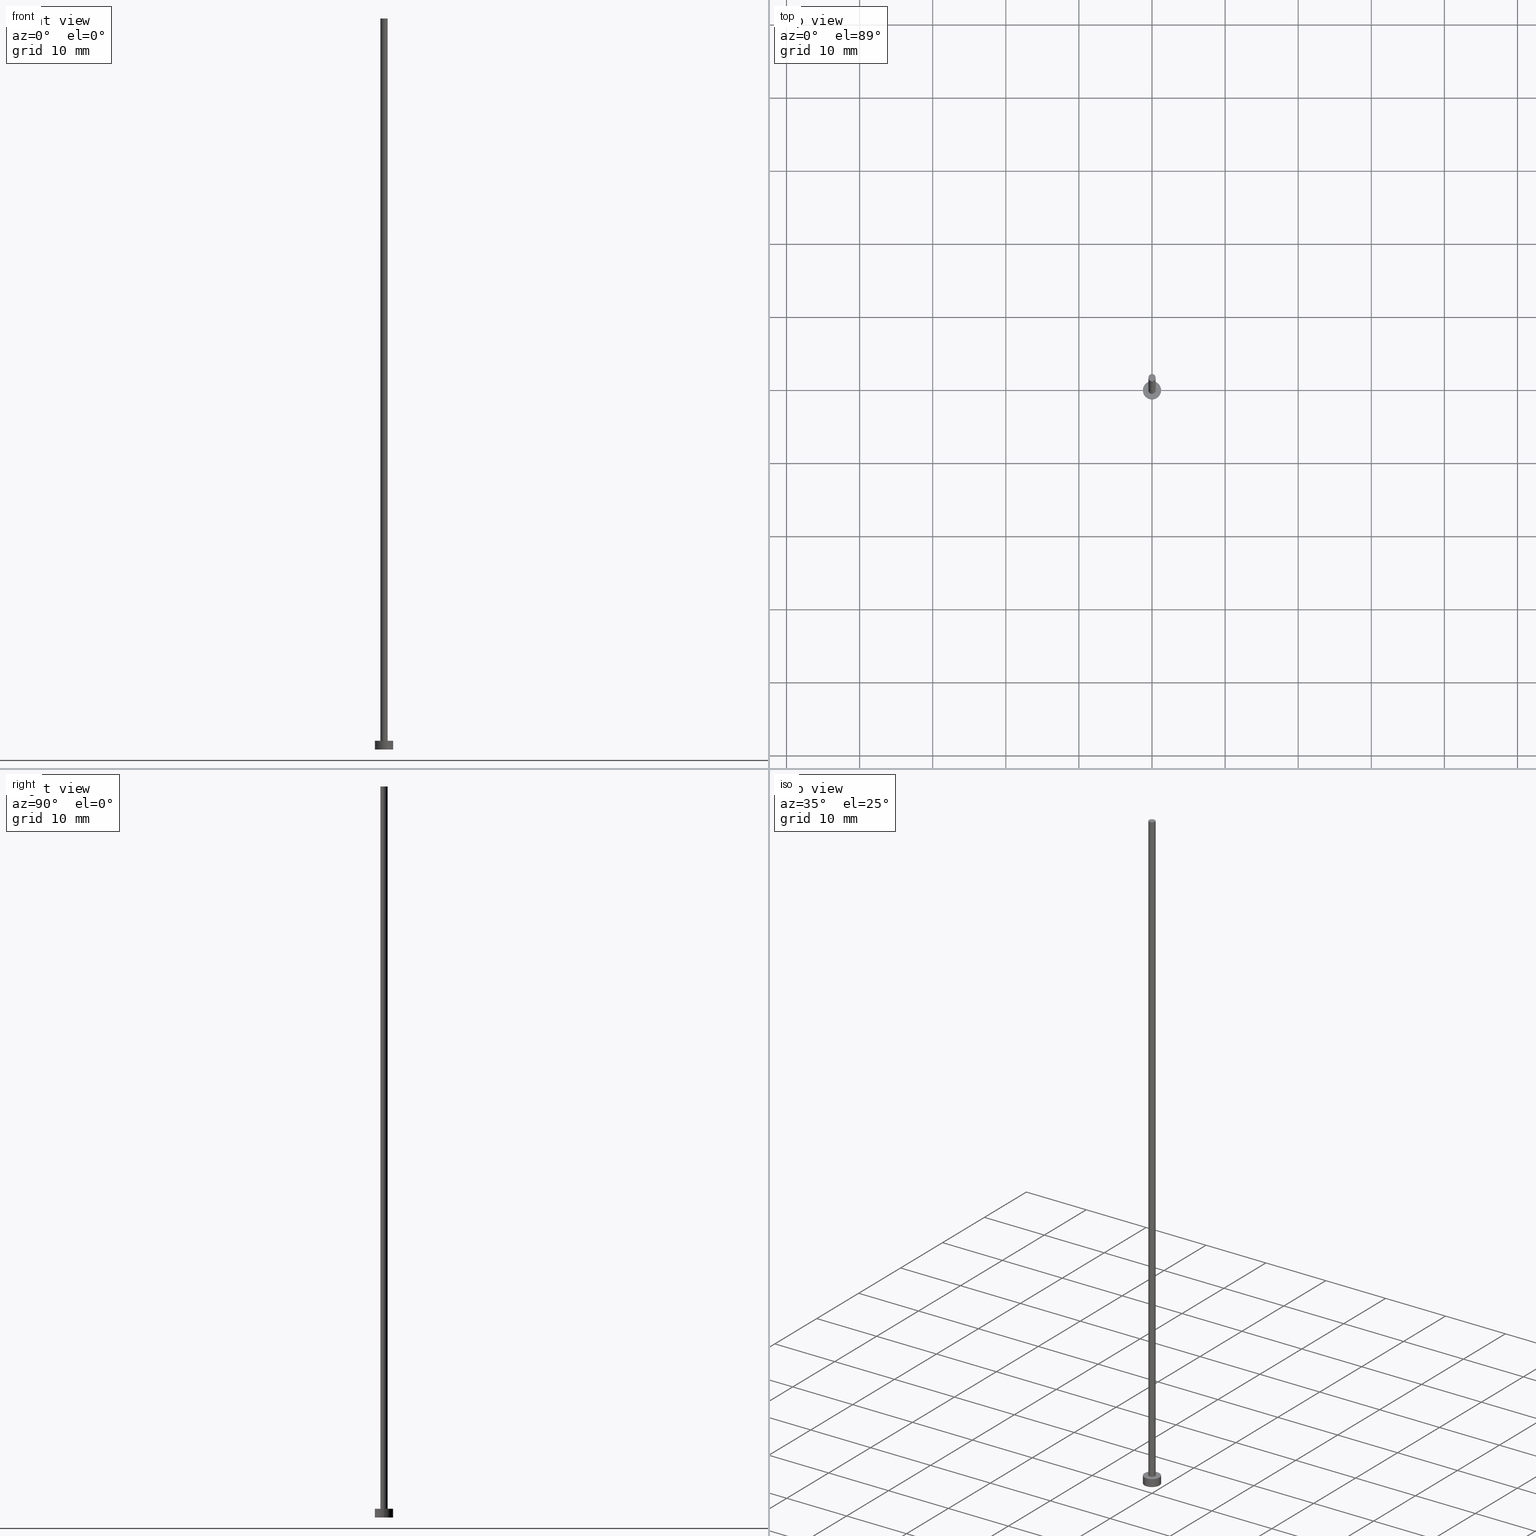
[diagram: canonical four-view strip — front | top / right | iso, engineering-drawing reading convention]
A machine part, canonical four-view strip (front | top / right | iso — engineering-drawing reading convention). The complete STEP part file that produces these views, byte-faithful:
ISO-10303-21;
HEADER;
FILE_DESCRIPTION (( 'STEP AP203' ),
    '1' );
FILE_NAME ('a39c.STEP',
    '2025-01-10T07:01:29',
    ( '' ),
    ( '' ),
    'SwSTEP 2.0',
    'SolidWorks 2019',
    '' );
FILE_SCHEMA (( 'CONFIG_CONTROL_DESIGN' ));
ENDSEC;

DATA;
#1 =( NAMED_UNIT ( * ) PLANE_ANGLE_UNIT ( ) SI_UNIT ( $, .RADIAN. ) );
#2 = ORIENTED_EDGE ( 'NONE', *, *, #224, .T. ) ;
#3 = VECTOR ( 'NONE', #191, 1000.000000000000000 ) ;
#4 = PERSON_AND_ORGANIZATION_ROLE ( 'design_supplier' ) ;
#5 = ORIENTED_EDGE ( 'NONE', *, *, #224, .F. ) ;
#6 = ORIENTED_EDGE ( 'NONE', *, *, #116, .F. ) ;
#7 = EDGE_LOOP ( 'NONE', ( #84, #41 ) ) ;
#8 = CC_DESIGN_PERSON_AND_ORGANIZATION_ASSIGNMENT ( #98, #212, ( #72 ) ) ;
#9 = UNCERTAINTY_MEASURE_WITH_UNIT (LENGTH_MEASURE( 1.000000000000000082E-05 ), #215, 'distance_accuracy_value', 'NONE');
#10 = CARTESIAN_POINT ( 'NONE',  ( 0.000000000000000000, 0.000000000000000000, 100.0000000000000000 ) ) ;
#11 = EDGE_CURVE ( 'NONE', #138, #176, #80, .T. ) ;
#12 = CARTESIAN_POINT ( 'NONE',  ( 0.000000000000000000, 0.000000000000000000, 1.199999999999999956 ) ) ;
#13 = DIRECTION ( 'NONE',  ( -0.000000000000000000, -0.000000000000000000, -1.000000000000000000 ) ) ;
#14 = PERSON_AND_ORGANIZATION ( #126, #106 ) ;
#15 = DIRECTION ( 'NONE',  ( 1.000000000000000000, 0.000000000000000000, 0.000000000000000000 ) ) ;
#16 = CARTESIAN_POINT ( 'NONE',  ( 0.000000000000000000, 0.000000000000000000, 0.000000000000000000 ) ) ;
#17 = CIRCLE ( 'NONE', #58, 0.5000000000000000000 ) ;
#18 = DATE_AND_TIME ( #22, #93 ) ;
#19 = VERTEX_POINT ( 'NONE', #83 ) ;
#20 = ORIENTED_EDGE ( 'NONE', *, *, #24, .T. ) ;
#21 = APPROVAL_DATE_TIME ( #237, #124 ) ;
#22 = CALENDAR_DATE ( 2025, 10, 1 ) ;
#23 = CIRCLE ( 'NONE', #166, 1.250000000000000000 ) ;
#24 = EDGE_CURVE ( 'NONE', #138, #136, #67, .T. ) ;
#25 = FACE_OUTER_BOUND ( 'NONE', #229, .T. ) ;
#26 = EDGE_CURVE ( 'NONE', #182, #176, #17, .T. ) ;
#27 = CC_DESIGN_APPROVAL ( #214, ( #223 ) ) ;
#28 = CARTESIAN_POINT ( 'NONE',  ( 0.000000000000000000, 0.000000000000000000, 0.000000000000000000 ) ) ;
#29 = CARTESIAN_POINT ( 'NONE',  ( 0.000000000000000000, 0.000000000000000000, 1.199999999999999956 ) ) ;
#30 = VECTOR ( 'NONE', #13, 1000.000000000000000 ) ;
#31 = VECTOR ( 'NONE', #90, 1000.000000000000000 ) ;
#32 = EDGE_CURVE ( 'NONE', #19, #66, #244, .T. ) ;
#33 = CARTESIAN_POINT ( 'NONE',  ( 0.000000000000000000, 0.000000000000000000, 100.0000000000000000 ) ) ;
#34 = CC_DESIGN_SECURITY_CLASSIFICATION ( #72, ( #239 ) ) ;
#35 = DIRECTION ( 'NONE',  ( -1.000000000000000000, 0.000000000000000000, 0.000000000000000000 ) ) ;
#36 = APPROVAL_ROLE ( '' ) ;
#37 = ADVANCED_FACE ( 'NONE', ( #107 ), #187, .T. ) ;
#38 =( NAMED_UNIT ( * ) SI_UNIT ( $, .STERADIAN. ) SOLID_ANGLE_UNIT ( ) );
#39 = VECTOR ( 'NONE', #233, 1000.000000000000000 ) ;
#40 = PERSON_AND_ORGANIZATION ( #126, #106 ) ;
#41 = ORIENTED_EDGE ( 'NONE', *, *, #200, .T. ) ;
#42 = ORIENTED_EDGE ( 'NONE', *, *, #11, .F. ) ;
#43 = DATE_AND_TIME ( #194, #115 ) ;
#44 = ORIENTED_EDGE ( 'NONE', *, *, #65, .F. ) ;
#45 = CLOSED_SHELL ( 'NONE', ( #87, #249, #140, #232, #122, #132, #37 ) ) ;
#46 = DATE_TIME_ROLE ( 'creation_date' ) ;
#47 = EDGE_LOOP ( 'NONE', ( #196, #20 ) ) ;
#48 = PRODUCT ( 'a39c', 'a39c', '', ( #77 ) ) ;
#49 = AXIS2_PLACEMENT_3D ( 'NONE', #29, #228, #167 ) ;
#50 = DIRECTION ( 'NONE',  ( 0.000000000000000000, 0.000000000000000000, 1.000000000000000000 ) ) ;
#51 = DIRECTION ( 'NONE',  ( -1.000000000000000000, 0.000000000000000000, 0.000000000000000000 ) ) ;
#52 = LOCAL_TIME ( 8, 1, 29.00000000000000000, #231 ) ;
#53 = APPROVAL_DATE_TIME ( #190, #214 ) ;
#54 = CARTESIAN_POINT ( 'NONE',  ( -1.250000000000000000, 0.000000000000000000, 1.199999999999999956 ) ) ;
#55 = PERSON_AND_ORGANIZATION ( #126, #106 ) ;
#56 = CC_DESIGN_PERSON_AND_ORGANIZATION_ASSIGNMENT ( #253, #4, ( #239 ) ) ;
#57 = DIRECTION ( 'NONE',  ( -0.000000000000000000, -0.000000000000000000, -1.000000000000000000 ) ) ;
#58 = AXIS2_PLACEMENT_3D ( 'NONE', #220, #50, #69 ) ;
#59 = CARTESIAN_POINT ( 'NONE',  ( 0.000000000000000000, 0.000000000000000000, 1.199999999999999956 ) ) ;
#60 = APPROVAL_DATE_TIME ( #135, #70 ) ;
#61 = AXIS2_PLACEMENT_3D ( 'NONE', #130, #94, #15 ) ;
#62 = EDGE_LOOP ( 'NONE', ( #85, #103 ) ) ;
#63 = COORDINATED_UNIVERSAL_TIME_OFFSET ( 1, 0, .AHEAD. ) ;
#64 = DIRECTION ( 'NONE',  ( 0.000000000000000000, 0.000000000000000000, 1.000000000000000000 ) ) ;
#65 = EDGE_CURVE ( 'NONE', #136, #138, #230, .T. ) ;
#66 = VERTEX_POINT ( 'NONE', #199 ) ;
#67 = CIRCLE ( 'NONE', #201, 0.5000000000000000000 ) ;
#68 = APPROVAL_PERSON_ORGANIZATION ( #157, #124, #137 ) ;
#69 = DIRECTION ( 'NONE',  ( 1.000000000000000000, 0.000000000000000000, 0.000000000000000000 ) ) ;
#70 = APPROVAL ( #95, 'NEUR�EN�' ) ;
#71 = DIRECTION ( 'NONE',  ( 0.000000000000000000, 0.000000000000000000, 1.000000000000000000 ) ) ;
#72 = SECURITY_CLASSIFICATION ( '', '', #101 ) ;
#73 = DIRECTION ( 'NONE',  ( 0.000000000000000000, 0.000000000000000000, 1.000000000000000000 ) ) ;
#74 = APPLICATION_CONTEXT ( 'configuration controlled 3d designs of mechanical parts and assemblies' ) ;
#75 = CYLINDRICAL_SURFACE ( 'NONE', #178, 1.250000000000000000 ) ;
#76 = CIRCLE ( 'NONE', #61, 1.250000000000000000 ) ;
#77 = MECHANICAL_CONTEXT ( 'NONE', #74, 'mechanical' ) ;
#78 = CARTESIAN_POINT ( 'NONE',  ( 0.5000000000000000000, 6.123233995736766036E-17, 100.0000000000000000 ) ) ;
#79 = AXIS2_PLACEMENT_3D ( 'NONE', #142, #184, #145 ) ;
#80 = LINE ( 'NONE', #238, #39 ) ;
#81 = DATE_TIME_ROLE ( 'classification_date' ) ;
#82 = PRODUCT_RELATED_PRODUCT_CATEGORY ( 'detail', '', ( #48 ) ) ;
#83 = CARTESIAN_POINT ( 'NONE',  ( -1.250000000000000000, 0.000000000000000000, 1.199999999999999956 ) ) ;
#84 = ORIENTED_EDGE ( 'NONE', *, *, #32, .T. ) ;
#85 = ORIENTED_EDGE ( 'NONE', *, *, #26, .F. ) ;
#86 = CC_DESIGN_APPROVAL ( #70, ( #239 ) ) ;
#87 = ADVANCED_FACE ( 'NONE', ( #25 ), #105, .T. ) ;
#88 = CARTESIAN_POINT ( 'NONE',  ( 0.000000000000000000, 0.000000000000000000, 100.0000000000000000 ) ) ;
#89 = DIRECTION ( 'NONE',  ( 0.000000000000000000, 0.000000000000000000, 1.000000000000000000 ) ) ;
#90 = DIRECTION ( 'NONE',  ( -0.000000000000000000, -0.000000000000000000, -1.000000000000000000 ) ) ;
#91 = CYLINDRICAL_SURFACE ( 'NONE', #179, 0.5000000000000000000 ) ;
#92 = CARTESIAN_POINT ( 'NONE',  ( 0.5000000000000000000, 6.123233995736766036E-17, 1.199999999999999956 ) ) ;
#93 = LOCAL_TIME ( 8, 1, 29.00000000000000000, #205 ) ;
#94 = DIRECTION ( 'NONE',  ( 0.000000000000000000, 0.000000000000000000, 1.000000000000000000 ) ) ;
#95 = APPROVAL_STATUS ( 'not_yet_approved' ) ;
#96 = CC_DESIGN_PERSON_AND_ORGANIZATION_ASSIGNMENT ( #40, #154, ( #239 ) ) ;
#97 = VERTEX_POINT ( 'NONE', #202 ) ;
#98 = PERSON_AND_ORGANIZATION ( #126, #106 ) ;
#99 =( GEOMETRIC_REPRESENTATION_CONTEXT ( 3 ) GLOBAL_UNCERTAINTY_ASSIGNED_CONTEXT ( ( #9 ) ) GLOBAL_UNIT_ASSIGNED_CONTEXT ( ( #215, #1, #38 ) ) REPRESENTATION_CONTEXT ( 'NONE', 'WORKASPACE' ) );
#100 = ORIENTED_EDGE ( 'NONE', *, *, #200, .F. ) ;
#101 = SECURITY_CLASSIFICATION_LEVEL ( 'unclassified' ) ;
#102 = EDGE_CURVE ( 'NONE', #176, #182, #162, .T. ) ;
#103 = ORIENTED_EDGE ( 'NONE', *, *, #102, .F. ) ;
#104 = ORIENTED_EDGE ( 'NONE', *, *, #153, .T. ) ;
#105 = CYLINDRICAL_SURFACE ( 'NONE', #186, 0.5000000000000000000 ) ;
#106 = ORGANIZATION ( 'NEUR�EN�', 'NEUR�EN�', '' ) ;
#107 = FACE_OUTER_BOUND ( 'NONE', #47, .T. ) ;
#108 = DIRECTION ( 'NONE',  ( 1.000000000000000000, 0.000000000000000000, -0.000000000000000000 ) ) ;
#109 = CARTESIAN_POINT ( 'NONE',  ( -0.5000000000000000000, 0.000000000000000000, 1.199999999999999956 ) ) ;
#110 = PLANE ( 'NONE',  #123 ) ;
#111 = LINE ( 'NONE', #54, #31 ) ;
#112 = CC_DESIGN_DATE_AND_TIME_ASSIGNMENT ( #18, #46, ( #223 ) ) ;
#113 = EDGE_CURVE ( 'NONE', #118, #97, #131, .T. ) ;
#114 = DIRECTION ( 'NONE',  ( -0.000000000000000000, -0.000000000000000000, -1.000000000000000000 ) ) ;
#115 = LOCAL_TIME ( 8, 1, 29.00000000000000000, #63 ) ;
#116 = EDGE_CURVE ( 'NONE', #97, #118, #23, .T. ) ;
#117 = EDGE_LOOP ( 'NONE', ( #175, #6 ) ) ;
#118 = VERTEX_POINT ( 'NONE', #165 ) ;
#119 = APPROVAL_STATUS ( 'not_yet_approved' ) ;
#120 = ORIENTED_EDGE ( 'NONE', *, *, #255, .T. ) ;
#121 = ORIENTED_EDGE ( 'NONE', *, *, #255, .F. ) ;
#122 = ADVANCED_FACE ( 'NONE', ( #245 ), #226, .F. ) ;
#123 = AXIS2_PLACEMENT_3D ( 'NONE', #148, #252, #108 ) ;
#124 = APPROVAL ( #119, 'NEUR�EN�' ) ;
#125 = DIRECTION ( 'NONE',  ( 1.000000000000000000, 0.000000000000000000, -0.000000000000000000 ) ) ;
#126 = PERSON ( 'NEUR�EN�', 'NEUR�EN�', 'NEUR�EN�', ('NEUR�EN�'), ('NEUR�EN�'), ('NEUR�EN�') ) ;
#127 = AXIS2_PLACEMENT_3D ( 'NONE', #134, #73, #247 ) ;
#128 = LINE ( 'NONE', #246, #30 ) ;
#129 = PERSON_AND_ORGANIZATION_ROLE ( 'creator' ) ;
#130 = CARTESIAN_POINT ( 'NONE',  ( 0.000000000000000000, 0.000000000000000000, 1.199999999999999956 ) ) ;
#131 = CIRCLE ( 'NONE', #143, 1.250000000000000000 ) ;
#132 = ADVANCED_FACE ( 'NONE', ( #227 ), #91, .T. ) ;
#133 = DIRECTION ( 'NONE',  ( 0.000000000000000000, 0.000000000000000000, 1.000000000000000000 ) ) ;
#134 = CARTESIAN_POINT ( 'NONE',  ( 0.000000000000000000, 0.000000000000000000, 0.000000000000000000 ) ) ;
#135 = DATE_AND_TIME ( #181, #52 ) ;
#136 = VERTEX_POINT ( 'NONE', #170 ) ;
#137 = APPROVAL_ROLE ( '' ) ;
#138 = VERTEX_POINT ( 'NONE', #78 ) ;
#139 = LOCAL_TIME ( 8, 1, 29.00000000000000000, #169 ) ;
#140 = ADVANCED_FACE ( 'NONE', ( #225 ), #75, .T. ) ;
#141 = ORIENTED_EDGE ( 'NONE', *, *, #32, .F. ) ;
#142 = CARTESIAN_POINT ( 'NONE',  ( 0.000000000000000000, 0.000000000000000000, 1.199999999999999956 ) ) ;
#143 = AXIS2_PLACEMENT_3D ( 'NONE', #28, #89, #146 ) ;
#144 = DIRECTION ( 'NONE',  ( 1.000000000000000000, 0.000000000000000000, 0.000000000000000000 ) ) ;
#145 = DIRECTION ( 'NONE',  ( 1.000000000000000000, 0.000000000000000000, 0.000000000000000000 ) ) ;
#146 = DIRECTION ( 'NONE',  ( 1.000000000000000000, 0.000000000000000000, 0.000000000000000000 ) ) ;
#147 = CC_DESIGN_PERSON_AND_ORGANIZATION_ASSIGNMENT ( #14, #129, ( #223 ) ) ;
#148 = CARTESIAN_POINT ( 'NONE',  ( 0.000000000000000000, 0.000000000000000000, 1.199999999999999956 ) ) ;
#149 = AXIS2_PLACEMENT_3D ( 'NONE', #251, #64, #207 ) ;
#150 = DIRECTION ( 'NONE',  ( 1.000000000000000000, 0.000000000000000000, 0.000000000000000000 ) ) ;
#151 = PERSON_AND_ORGANIZATION_ROLE ( 'design_owner' ) ;
#152 = FACE_OUTER_BOUND ( 'NONE', #193, .T. ) ;
#153 = EDGE_CURVE ( 'NONE', #19, #118, #111, .T. ) ;
#154 = PERSON_AND_ORGANIZATION_ROLE ( 'creator' ) ;
#155 = ORIENTED_EDGE ( 'NONE', *, *, #24, .F. ) ;
#156 = EDGE_LOOP ( 'NONE', ( #42, #44, #120, #254 ) ) ;
#157 = PERSON_AND_ORGANIZATION ( #126, #106 ) ;
#158 = CARTESIAN_POINT ( 'NONE',  ( 0.000000000000000000, 0.000000000000000000, 100.0000000000000000 ) ) ;
#159 = CC_DESIGN_PERSON_AND_ORGANIZATION_ASSIGNMENT ( #55, #151, ( #48 ) ) ;
#160 = ORIENTED_EDGE ( 'NONE', *, *, #102, .T. ) ;
#161 = AXIS2_PLACEMENT_3D ( 'NONE', #12, #133, #210 ) ;
#162 = CIRCLE ( 'NONE', #161, 0.5000000000000000000 ) ;
#163 = DIRECTION ( 'NONE',  ( 0.000000000000000000, 0.000000000000000000, 1.000000000000000000 ) ) ;
#164 = DIRECTION ( 'NONE',  ( -0.000000000000000000, -0.000000000000000000, -1.000000000000000000 ) ) ;
#165 = CARTESIAN_POINT ( 'NONE',  ( -1.250000000000000000, 0.000000000000000000, 0.000000000000000000 ) ) ;
#166 = AXIS2_PLACEMENT_3D ( 'NONE', #16, #208, #150 ) ;
#167 = DIRECTION ( 'NONE',  ( -1.000000000000000000, 0.000000000000000000, 0.000000000000000000 ) ) ;
#168 = CC_DESIGN_DATE_AND_TIME_ASSIGNMENT ( #43, #81, ( #72 ) ) ;
#169 = COORDINATED_UNIVERSAL_TIME_OFFSET ( 1, 0, .AHEAD. ) ;
#170 = CARTESIAN_POINT ( 'NONE',  ( -0.5000000000000000000, 0.000000000000000000, 100.0000000000000000 ) ) ;
#171 = PRODUCT_DEFINITION_SHAPE ( 'NONE', 'NONE',  #223 ) ;
#172 = FACE_BOUND ( 'NONE', #62, .T. ) ;
#173 = LINE ( 'NONE', #206, #3 ) ;
#174 = CALENDAR_DATE ( 2025, 10, 1 ) ;
#175 = ORIENTED_EDGE ( 'NONE', *, *, #113, .F. ) ;
#176 = VERTEX_POINT ( 'NONE', #92 ) ;
#177 = COORDINATED_UNIVERSAL_TIME_OFFSET ( 1, 0, .AHEAD. ) ;
#178 = AXIS2_PLACEMENT_3D ( 'NONE', #59, #57, #204 ) ;
#179 = AXIS2_PLACEMENT_3D ( 'NONE', #33, #114, #35 ) ;
#180 = EDGE_LOOP ( 'NONE', ( #5, #141, #104, #217 ) ) ;
#181 = CALENDAR_DATE ( 2025, 10, 1 ) ;
#182 = VERTEX_POINT ( 'NONE', #109 ) ;
#183 = APPROVAL_PERSON_ORGANIZATION ( #218, #70, #221 ) ;
#184 = DIRECTION ( 'NONE',  ( 0.000000000000000000, 0.000000000000000000, 1.000000000000000000 ) ) ;
#185 = DESIGN_CONTEXT ( 'detailed design', #243, 'design' ) ;
#186 = AXIS2_PLACEMENT_3D ( 'NONE', #88, #164, #51 ) ;
#187 = PLANE ( 'NONE',  #219 ) ;
#188 = CYLINDRICAL_SURFACE ( 'NONE', #49, 1.250000000000000000 ) ;
#189 = PERSON_AND_ORGANIZATION ( #126, #106 ) ;
#190 = DATE_AND_TIME ( #174, #139 ) ;
#191 = DIRECTION ( 'NONE',  ( -0.000000000000000000, -0.000000000000000000, -1.000000000000000000 ) ) ;
#192 = FACE_OUTER_BOUND ( 'NONE', #7, .T. ) ;
#193 = EDGE_LOOP ( 'NONE', ( #100, #2, #222, #241 ) ) ;
#194 = CALENDAR_DATE ( 2025, 10, 1 ) ;
#195 = SHAPE_DEFINITION_REPRESENTATION ( #171, #248 ) ;
#196 = ORIENTED_EDGE ( 'NONE', *, *, #65, .T. ) ;
#197 = DIRECTION ( 'NONE',  ( 0.000000000000000000, 0.000000000000000000, 1.000000000000000000 ) ) ;
#198 = CARTESIAN_POINT ( 'NONE',  ( 0.000000000000000000, 0.000000000000000000, 100.0000000000000000 ) ) ;
#199 = CARTESIAN_POINT ( 'NONE',  ( 1.250000000000000000, 1.530808498934191571E-16, 1.199999999999999956 ) ) ;
#200 = EDGE_CURVE ( 'NONE', #66, #19, #76, .T. ) ;
#201 = AXIS2_PLACEMENT_3D ( 'NONE', #158, #197, #236 ) ;
#202 = CARTESIAN_POINT ( 'NONE',  ( 1.250000000000000000, 1.530808498934191571E-16, 0.000000000000000000 ) ) ;
#203 = MANIFOLD_SOLID_BREP ( 'P�idat vysunut�m3', #45 ) ;
#204 = DIRECTION ( 'NONE',  ( -1.000000000000000000, 0.000000000000000000, 0.000000000000000000 ) ) ;
#205 = COORDINATED_UNIVERSAL_TIME_OFFSET ( 1, 0, .AHEAD. ) ;
#206 = CARTESIAN_POINT ( 'NONE',  ( 1.250000000000000000, 1.530808498934191571E-16, 1.199999999999999956 ) ) ;
#207 = DIRECTION ( 'NONE',  ( 1.000000000000000000, 0.000000000000000000, 0.000000000000000000 ) ) ;
#208 = DIRECTION ( 'NONE',  ( 0.000000000000000000, 0.000000000000000000, 1.000000000000000000 ) ) ;
#209 = APPLICATION_PROTOCOL_DEFINITION ( 'international standard', 'config_control_design', 1994, #243 ) ;
#210 = DIRECTION ( 'NONE',  ( 1.000000000000000000, 0.000000000000000000, 0.000000000000000000 ) ) ;
#211 = APPROVAL_STATUS ( 'not_yet_approved' ) ;
#212 = PERSON_AND_ORGANIZATION_ROLE ( 'classification_officer' ) ;
#213 = CC_DESIGN_APPROVAL ( #124, ( #72 ) ) ;
#214 = APPROVAL ( #211, 'NEUR�EN�' ) ;
#215 =( LENGTH_UNIT ( ) NAMED_UNIT ( * ) SI_UNIT ( .MILLI., .METRE. ) );
#216 = ORIENTED_EDGE ( 'NONE', *, *, #11, .T. ) ;
#217 = ORIENTED_EDGE ( 'NONE', *, *, #113, .T. ) ;
#218 = PERSON_AND_ORGANIZATION ( #126, #106 ) ;
#219 = AXIS2_PLACEMENT_3D ( 'NONE', #10, #71, #125 ) ;
#220 = CARTESIAN_POINT ( 'NONE',  ( 0.000000000000000000, 0.000000000000000000, 1.199999999999999956 ) ) ;
#221 = APPROVAL_ROLE ( '' ) ;
#222 = ORIENTED_EDGE ( 'NONE', *, *, #116, .T. ) ;
#223 = PRODUCT_DEFINITION ( 'NEZN�M�', '', #239, #185 ) ;
#224 = EDGE_CURVE ( 'NONE', #66, #97, #173, .T. ) ;
#225 = FACE_OUTER_BOUND ( 'NONE', #180, .T. ) ;
#226 = PLANE ( 'NONE',  #127 ) ;
#227 = FACE_OUTER_BOUND ( 'NONE', #156, .T. ) ;
#228 = DIRECTION ( 'NONE',  ( -0.000000000000000000, -0.000000000000000000, -1.000000000000000000 ) ) ;
#229 = EDGE_LOOP ( 'NONE', ( #155, #216, #160, #121 ) ) ;
#230 = CIRCLE ( 'NONE', #242, 0.5000000000000000000 ) ;
#231 = COORDINATED_UNIVERSAL_TIME_OFFSET ( 1, 0, .AHEAD. ) ;
#232 = ADVANCED_FACE ( 'NONE', ( #172, #192 ), #110, .T. ) ;
#233 = DIRECTION ( 'NONE',  ( -0.000000000000000000, -0.000000000000000000, -1.000000000000000000 ) ) ;
#234 = CALENDAR_DATE ( 2025, 10, 1 ) ;
#235 = APPLICATION_PROTOCOL_DEFINITION ( 'international standard', 'config_control_design', 1994, #74 ) ;
#236 = DIRECTION ( 'NONE',  ( 1.000000000000000000, 0.000000000000000000, 0.000000000000000000 ) ) ;
#237 = DATE_AND_TIME ( #234, #240 ) ;
#238 = CARTESIAN_POINT ( 'NONE',  ( 0.5000000000000000000, 6.123233995736766036E-17, 100.0000000000000000 ) ) ;
#239 = PRODUCT_DEFINITION_FORMATION_WITH_SPECIFIED_SOURCE ( 'LIBOVOLN�', '', #48, .NOT_KNOWN. ) ;
#240 = LOCAL_TIME ( 8, 1, 29.00000000000000000, #177 ) ;
#241 = ORIENTED_EDGE ( 'NONE', *, *, #153, .F. ) ;
#242 = AXIS2_PLACEMENT_3D ( 'NONE', #198, #163, #144 ) ;
#243 = APPLICATION_CONTEXT ( 'configuration controlled 3d designs of mechanical parts and assemblies' ) ;
#244 = CIRCLE ( 'NONE', #79, 1.250000000000000000 ) ;
#245 = FACE_OUTER_BOUND ( 'NONE', #117, .T. ) ;
#246 = CARTESIAN_POINT ( 'NONE',  ( -0.5000000000000000000, 0.000000000000000000, 100.0000000000000000 ) ) ;
#247 = DIRECTION ( 'NONE',  ( 1.000000000000000000, 0.000000000000000000, -0.000000000000000000 ) ) ;
#248 = ADVANCED_BREP_SHAPE_REPRESENTATION ( 'a39c', ( #203, #149 ), #99 ) ;
#249 = ADVANCED_FACE ( 'NONE', ( #152 ), #188, .T. ) ;
#250 = APPROVAL_PERSON_ORGANIZATION ( #189, #214, #36 ) ;
#251 = CARTESIAN_POINT ( 'NONE',  ( 0.000000000000000000, 0.000000000000000000, 0.000000000000000000 ) ) ;
#252 = DIRECTION ( 'NONE',  ( 0.000000000000000000, 0.000000000000000000, 1.000000000000000000 ) ) ;
#253 = PERSON_AND_ORGANIZATION ( #126, #106 ) ;
#254 = ORIENTED_EDGE ( 'NONE', *, *, #26, .T. ) ;
#255 = EDGE_CURVE ( 'NONE', #136, #182, #128, .T. ) ;
ENDSEC;
END-ISO-10303-21;
